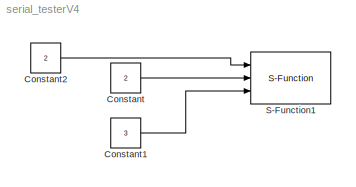
MODEL serial_testerV4
KIND model
BLOCK [Constant] Constant
  OutDataType = fixdt(1, 16)
  OutDataTypeMode = int32
  OutDataTypeStr = int32
  OutScaling = 2^0
  Value = 2
BLOCK [Constant] Constant1
  OutDataType = fixdt(1, 16)
  OutDataTypeMode = int32
  OutDataTypeStr = int32
  OutScaling = 2^0
  Value = 3
BLOCK [Constant] Constant2
  OutDataType = fixdt(1, 16)
  OutDataTypeMode = int32
  OutDataTypeStr = int32
  OutScaling = 2^0
  Value = 2
BLOCK [S-Function] S-Function1
  EnableBusSupport = off
  FunctionName = serialSend
  Ports = [3]
  Priority = 2
LINE Constant1:1 -> S-Function1:3
LINE Constant2:1 -> S-Function1:1
LINE Constant:1 -> S-Function1:2
